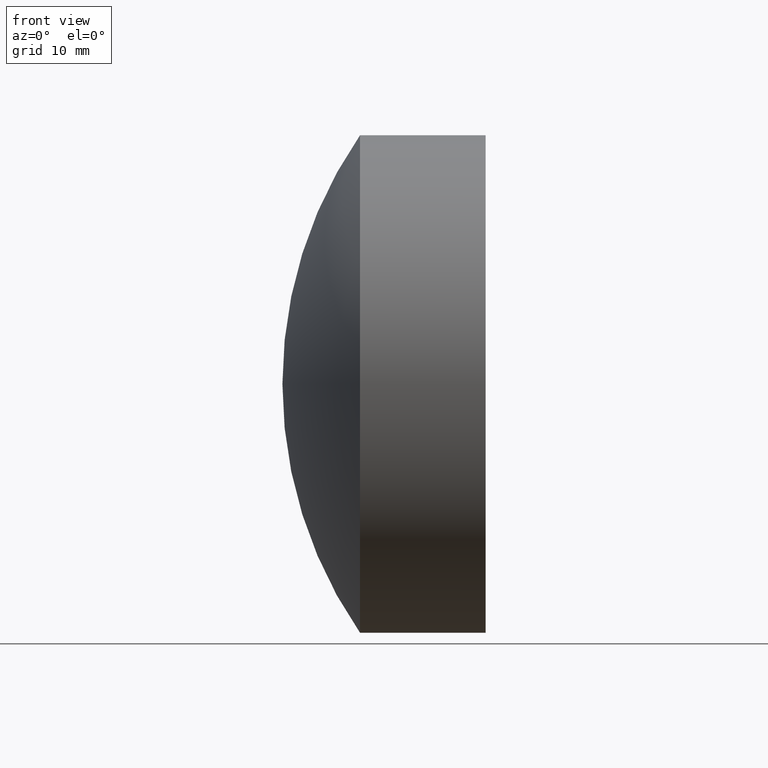
[diagram: clean part render]
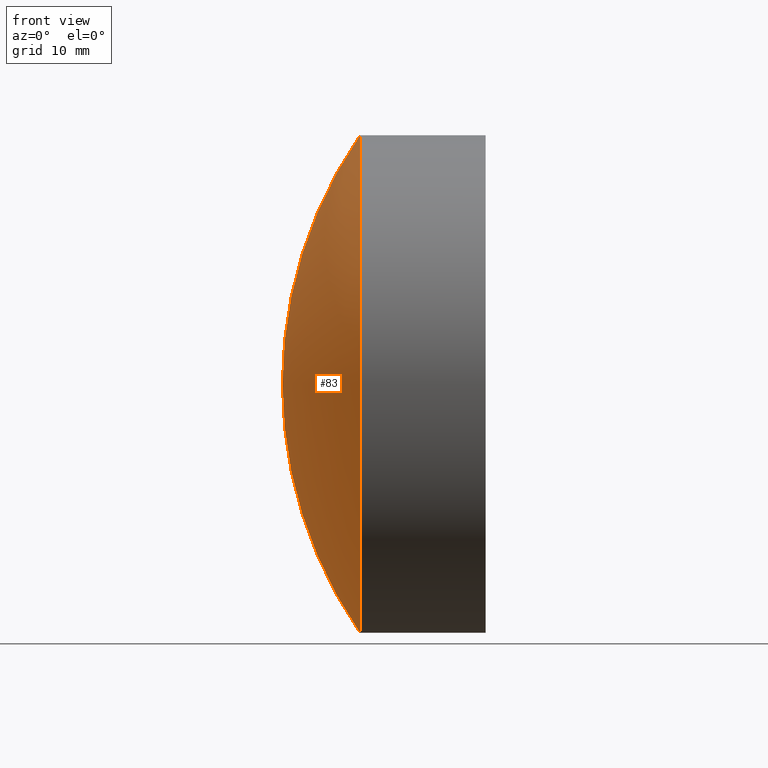
[diagram: same view with one face highlighted and labeled with its STEP entity id]
A machine part, front view. The second image highlights one B-rep face of the part: STEP entity #83.
In plain terms, the highlighted spherical surface has radius 44.67 mm.
Its self-contained STEP definition (entity closure, byte-faithful):
#10 = CARTESIAN_POINT ( 'NONE',  ( 93.90034463297794800, 0.0000000000000000000, 7.123233762843052800E-016 ) ) ;
#29 = AXIS2_PLACEMENT_3D ( 'NONE', #254, #251, #84 ) ;
#36 = EDGE_CURVE ( 'NONE', #141, #99, #261, .T. ) ;
#48 = CARTESIAN_POINT ( 'NONE',  ( 101.8246115473529000, 0.0000000000000000000, 0.0000000000000000000 ) ) ;
#50 = AXIS2_PLACEMENT_3D ( 'NONE', #59, #174, #227 ) ;
#59 = CARTESIAN_POINT ( 'NONE',  ( 138.5703446329779600, 0.0000000000000000000, -2.022925249611308500E-015 ) ) ;
#63 = VERTEX_POINT ( 'NONE', #150 ) ;
#72 = AXIS2_PLACEMENT_3D ( 'NONE', #168, #208, #177 ) ;
#73 = DIRECTION ( 'NONE',  ( 0.0000000000000000000, 0.0000000000000000000, 1.000000000000000000 ) ) ;
#83 = ADVANCED_FACE ( 'NONE', ( #202 ), #105, .T. ) ;
#84 = DIRECTION ( 'NONE',  ( 0.0000000000000000000, 0.0000000000000000000, 1.000000000000000000 ) ) ;
#99 = VERTEX_POINT ( 'NONE', #10 ) ;
#105 = SPHERICAL_SURFACE ( 'NONE', #29, 44.67000000000000900 ) ;
#141 = VERTEX_POINT ( 'NONE', #182 ) ;
#150 = CARTESIAN_POINT ( 'NONE',  ( 101.8246115473529000, 3.110602869834276900E-015, -25.40000000000000600 ) ) ;
#157 = AXIS2_PLACEMENT_3D ( 'NONE', #48, #236, #73 ) ;
#168 = CARTESIAN_POINT ( 'NONE',  ( 138.5703446329779600, 0.0000000000000000000, -2.022925249611308500E-015 ) ) ;
#174 = DIRECTION ( 'NONE',  ( 0.0000000000000000000, -1.000000000000000000, 0.0000000000000000000 ) ) ;
#177 = DIRECTION ( 'NONE',  ( 0.0000000000000000000, -1.224646799147353200E-016, 1.000000000000000000 ) ) ;
#182 = CARTESIAN_POINT ( 'NONE',  ( 101.8246115473529000, 0.0000000000000000000, 25.39999999999999900 ) ) ;
#192 = CIRCLE ( 'NONE', #72, 44.67000000000000900 ) ;
#202 = FACE_OUTER_BOUND ( 'NONE', #233, .T. ) ;
#203 = EDGE_CURVE ( 'NONE', #63, #99, #192, .T. ) ;
#208 = DIRECTION ( 'NONE',  ( -0.0000000000000000000, 1.000000000000000000, 1.224646799147353200E-016 ) ) ;
#224 = ORIENTED_EDGE ( 'NONE', *, *, #203, .F. ) ;
#227 = DIRECTION ( 'NONE',  ( 0.0000000000000000000, 0.0000000000000000000, -1.000000000000000000 ) ) ;
#233 = EDGE_LOOP ( 'NONE', ( #224, #270, #314 ) ) ;
#236 = DIRECTION ( 'NONE',  ( -1.000000000000000000, -0.0000000000000000000, -0.0000000000000000000 ) ) ;
#238 = EDGE_CURVE ( 'NONE', #63, #141, #245, .T. ) ;
#245 = CIRCLE ( 'NONE', #157, 25.39999999999999900 ) ;
#251 = DIRECTION ( 'NONE',  ( 0.0000000000000000000, 1.000000000000000000, 0.0000000000000000000 ) ) ;
#254 = CARTESIAN_POINT ( 'NONE',  ( 138.5703446329779600, 0.0000000000000000000, -2.022925249611308500E-015 ) ) ;
#261 = CIRCLE ( 'NONE', #50, 44.67000000000000900 ) ;
#270 = ORIENTED_EDGE ( 'NONE', *, *, #238, .T. ) ;
#314 = ORIENTED_EDGE ( 'NONE', *, *, #36, .T. ) ;